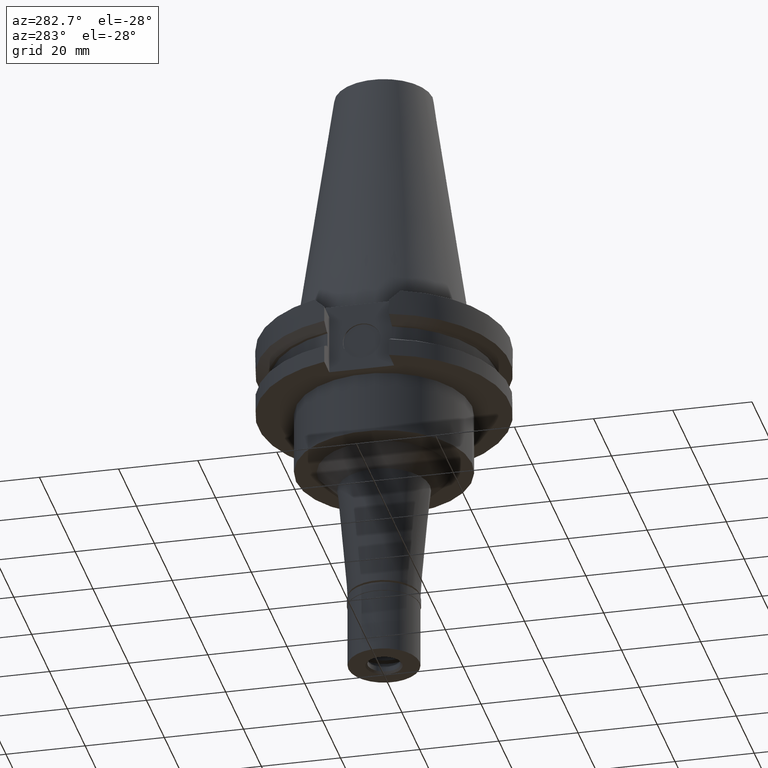
[diagram: clean part render]
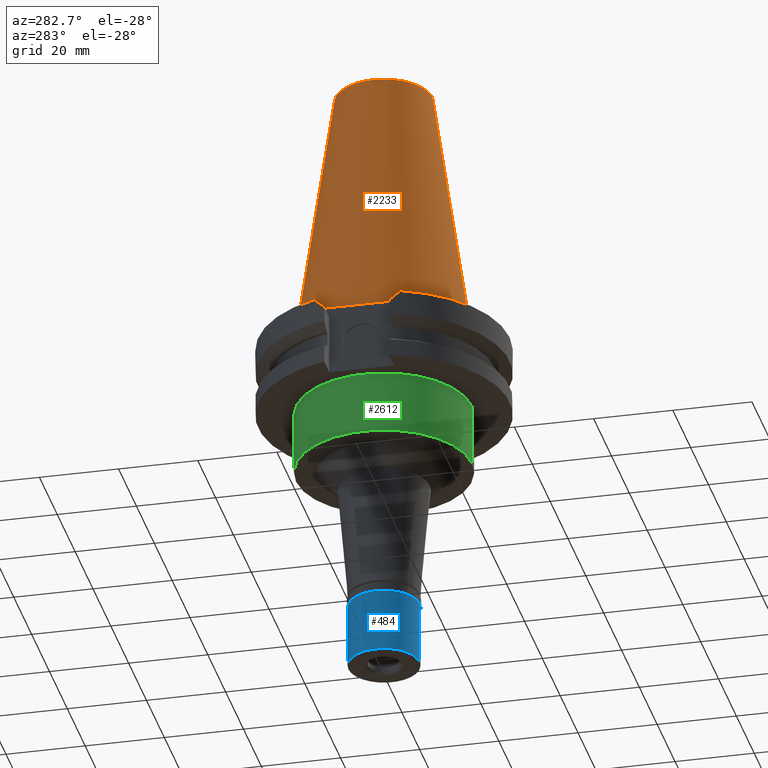
[diagram: same view with three faces highlighted in distinct colors, each labeled with its STEP entity id]
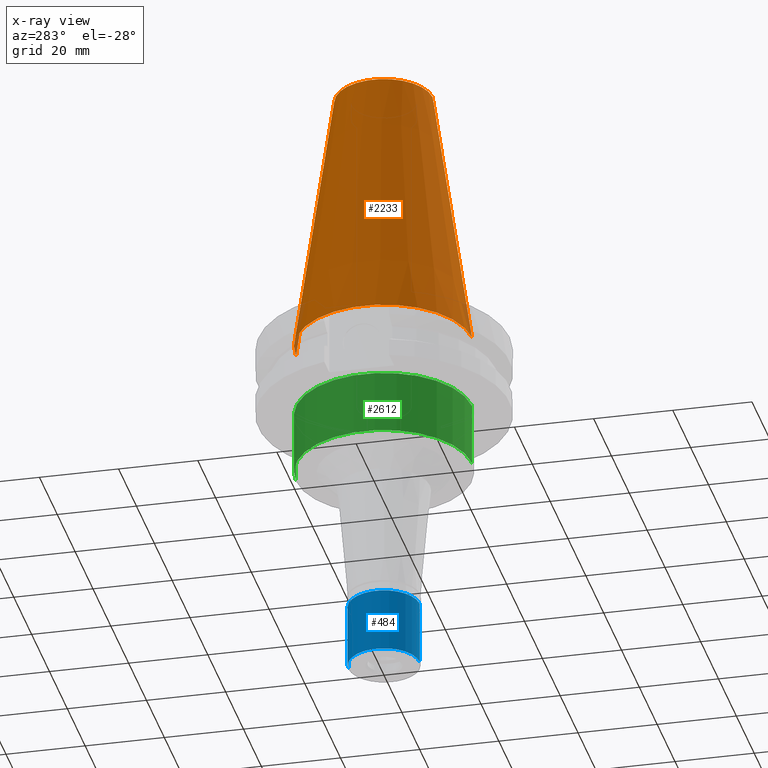
[diagram: x-ray of the same camera — body ghosted, the three highlighted faces saturated]
A machine part, auxiliary view with three faces highlighted in distinct colors.
The next image is the same camera in x-ray (body ghosted, the three faces saturated) — at least one of them is partly hidden behind the body in this view.
Their STEP definitions:

[orange] entity #2233 — the highlighted conical surface has half-angle 8.297 deg.
#37 = CARTESIAN_POINT ( 'NONE',  ( 0.0000000000000000000, -12.27186888070000137, 68.25000000000000000 ) ) ;
#69 = CONICAL_SURFACE ( 'NONE', #544, 17.24843444035000317, 0.1448125860318199565 ) ;
#82 = LINE ( 'NONE', #1310, #1571 ) ;
#205 = DIRECTION ( 'NONE',  ( 0.0000000000000000000, 0.0000000000000000000, -1.000000000000000000 ) ) ;
#287 = LINE ( 'NONE', #37, #1859 ) ;
#417 = FACE_OUTER_BOUND ( 'NONE', #930, .T. ) ;
#438 = CARTESIAN_POINT ( 'NONE',  ( 0.0000000000000000000, 1.642557519355999895E-14, 34.12500000000000000 ) ) ;
#475 = ORIENTED_EDGE ( 'NONE', *, *, #1887, .T. ) ;
#544 = AXIS2_PLACEMENT_3D ( 'NONE', #438, #205, #2926 ) ;
#560 = ORIENTED_EDGE ( 'NONE', *, *, #2562, .F. ) ;
#593 = DIRECTION ( 'NONE',  ( 0.0000000000000000000, 0.1443069799456937474, -0.9895329683941577192 ) ) ;
#789 = DIRECTION ( 'NONE',  ( 0.0000000000000000000, 0.0000000000000000000, -1.000000000000000000 ) ) ;
#930 = EDGE_LOOP ( 'NONE', ( #560, #2316, #475, #2873 ) ) ;
#1028 = CARTESIAN_POINT ( 'NONE',  ( 0.0000000000000000000, 12.27186888070000137, 68.25000000000000000 ) ) ;
#1060 = CIRCLE ( 'NONE', #2855, 22.22500000000000142 ) ;
#1264 = DIRECTION ( 'NONE',  ( 0.0000000000000000000, -1.000000000000000000, 0.0000000000000000000 ) ) ;
#1310 = CARTESIAN_POINT ( 'NONE',  ( 0.0000000000000000000, 12.27186888070000137, 68.25000000000000000 ) ) ;
#1348 = AXIS2_PLACEMENT_3D ( 'NONE', #1561, #789, #1264 ) ;
#1423 = DIRECTION ( 'NONE',  ( 0.0000000000000000000, -1.000000000000000000, 0.0000000000000000000 ) ) ;
#1561 = CARTESIAN_POINT ( 'NONE',  ( 0.0000000000000000000, 1.642557519355999895E-14, 68.25000000000000000 ) ) ;
#1571 = VECTOR ( 'NONE', #593, 1000.000000000000114 ) ;
#1649 = CARTESIAN_POINT ( 'NONE',  ( 0.0000000000000000000, 22.22500000000000142, -1.918465386551999891E-13 ) ) ;
#1681 = VERTEX_POINT ( 'NONE', #2398 ) ;
#1786 = DIRECTION ( 'NONE',  ( 0.0000000000000000000, -0.1443069799456937474, -0.9895329683941577192 ) ) ;
#1847 = CARTESIAN_POINT ( 'NONE',  ( 0.0000000000000000000, -22.22500000000000142, -1.918465386551999891E-13 ) ) ;
#1859 = VECTOR ( 'NONE', #1786, 1000.000000000000114 ) ;
#1887 = EDGE_CURVE ( 'NONE', #1681, #2447, #2995, .T. ) ;
#1997 = EDGE_CURVE ( 'NONE', #1681, #3139, #287, .T. ) ;
#2050 = CARTESIAN_POINT ( 'NONE',  ( 0.0000000000000000000, 1.642557519355999895E-14, -3.126388037344000570E-13 ) ) ;
#2233 = ADVANCED_FACE ( 'NONE', ( #417 ), #69, .T. ) ;
#2316 = ORIENTED_EDGE ( 'NONE', *, *, #1997, .F. ) ;
#2398 = CARTESIAN_POINT ( 'NONE',  ( 0.0000000000000000000, -12.27186888070000137, 68.25000000000000000 ) ) ;
#2447 = VERTEX_POINT ( 'NONE', #1028 ) ;
#2518 = EDGE_CURVE ( 'NONE', #2447, #2637, #82, .T. ) ;
#2562 = EDGE_CURVE ( 'NONE', #3139, #2637, #1060, .T. ) ;
#2637 = VERTEX_POINT ( 'NONE', #1649 ) ;
#2784 = DIRECTION ( 'NONE',  ( 0.0000000000000000000, 0.0000000000000000000, -1.000000000000000000 ) ) ;
#2855 = AXIS2_PLACEMENT_3D ( 'NONE', #2050, #2784, #1423 ) ;
#2873 = ORIENTED_EDGE ( 'NONE', *, *, #2518, .T. ) ;
#2926 = DIRECTION ( 'NONE',  ( 0.0000000000000000000, -1.000000000000000000, 0.0000000000000000000 ) ) ;
#2995 = CIRCLE ( 'NONE', #1348, 12.27186888070000137 ) ;
#3139 = VERTEX_POINT ( 'NONE', #1847 ) ;

[blue] entity #484 — the highlighted cylindrical surface (edge-blend (fillet) strip) has radius 9 mm, axis along (0, 0, 1).
#116 = DIRECTION ( 'NONE',  ( 0.0000000000000000000, 0.0000000000000000000, -1.000000000000000000 ) ) ;
#133 = CARTESIAN_POINT ( 'NONE',  ( 0.0000000000000000000, 0.0000000000000000000, -2.299999999999999822 ) ) ;
#165 = CARTESIAN_POINT ( 'NONE',  ( 0.0000000000000000000, 9.000000000000000000, -18.50000000000000000 ) ) ;
#252 = AXIS2_PLACEMENT_3D ( 'NONE', #1037, #3004, #2796 ) ;
#274 = CARTESIAN_POINT ( 'NONE',  ( 0.0000000000000000000, 9.000000000000000000, -2.299999999999999822 ) ) ;
#356 = CARTESIAN_POINT ( 'NONE',  ( 0.0000000000000000000, -9.000000000000000000, -2.299999999999999822 ) ) ;
#459 = CARTESIAN_POINT ( 'NONE',  ( 0.0000000000000000000, 0.0000000000000000000, -18.50000000000000000 ) ) ;
#471 = ORIENTED_EDGE ( 'NONE', *, *, #2333, .F. ) ;
#484 = ADVANCED_FACE ( 'NONE', ( #1271 ), #1548, .T. ) ;
#542 = ORIENTED_EDGE ( 'NONE', *, *, #1480, .T. ) ;
#570 = AXIS2_PLACEMENT_3D ( 'NONE', #459, #1438, #2433 ) ;
#742 = EDGE_LOOP ( 'NONE', ( #1591, #471, #1474, #542 ) ) ;
#756 = DIRECTION ( 'NONE',  ( 0.0000000000000000000, 0.0000000000000000000, -1.000000000000000000 ) ) ;
#787 = LINE ( 'NONE', #2033, #1921 ) ;
#922 = CIRCLE ( 'NONE', #1332, 9.000000000000000000 ) ;
#1019 = DIRECTION ( 'NONE',  ( 0.0000000000000000000, 0.0000000000000000000, -1.000000000000000000 ) ) ;
#1037 = CARTESIAN_POINT ( 'NONE',  ( 0.0000000000000000000, 0.0000000000000000000, -19.42500000000000071 ) ) ;
#1106 = EDGE_CURVE ( 'NONE', #2645, #2300, #922, .T. ) ;
#1271 = FACE_OUTER_BOUND ( 'NONE', #742, .T. ) ;
#1311 = EDGE_CURVE ( 'NONE', #2670, #2002, #3097, .T. ) ;
#1332 = AXIS2_PLACEMENT_3D ( 'NONE', #133, #116, #1631 ) ;
#1393 = VECTOR ( 'NONE', #1019, 1000.000000000000000 ) ;
#1438 = DIRECTION ( 'NONE',  ( 0.0000000000000000000, 0.0000000000000000000, 1.000000000000000000 ) ) ;
#1474 = ORIENTED_EDGE ( 'NONE', *, *, #1106, .T. ) ;
#1480 = EDGE_CURVE ( 'NONE', #2300, #2670, #3001, .T. ) ;
#1548 = CYLINDRICAL_SURFACE ( 'NONE', #252, 9.000000000000000000 ) ;
#1591 = ORIENTED_EDGE ( 'NONE', *, *, #1311, .T. ) ;
#1631 = DIRECTION ( 'NONE',  ( 0.0000000000000000000, -1.000000000000000000, 0.0000000000000000000 ) ) ;
#1921 = VECTOR ( 'NONE', #756, 1000.000000000000000 ) ;
#2002 = VERTEX_POINT ( 'NONE', #2515 ) ;
#2033 = CARTESIAN_POINT ( 'NONE',  ( 0.0000000000000000000, -9.000000000000000000, -2.299999999999999822 ) ) ;
#2300 = VERTEX_POINT ( 'NONE', #2678 ) ;
#2333 = EDGE_CURVE ( 'NONE', #2645, #2002, #787, .T. ) ;
#2433 = DIRECTION ( 'NONE',  ( 0.0000000000000000000, 1.000000000000000000, 0.0000000000000000000 ) ) ;
#2515 = CARTESIAN_POINT ( 'NONE',  ( 0.0000000000000000000, -9.000000000000000000, -18.50000000000000000 ) ) ;
#2645 = VERTEX_POINT ( 'NONE', #356 ) ;
#2670 = VERTEX_POINT ( 'NONE', #165 ) ;
#2678 = CARTESIAN_POINT ( 'NONE',  ( 0.0000000000000000000, 9.000000000000000000, -2.299999999999999822 ) ) ;
#2796 = DIRECTION ( 'NONE',  ( 0.0000000000000000000, 1.000000000000000000, 0.0000000000000000000 ) ) ;
#3001 = LINE ( 'NONE', #274, #1393 ) ;
#3004 = DIRECTION ( 'NONE',  ( 0.0000000000000000000, 0.0000000000000000000, 1.000000000000000000 ) ) ;
#3097 = CIRCLE ( 'NONE', #570, 9.000000000000000000 ) ;

[green] entity #2612 — the highlighted cylindrical surface (partial cylindrical patch) has radius 22.225 mm, axis along (0, 0, -1).
#18 = VECTOR ( 'NONE', #1632, 1000.000000000000000 ) ;
#187 = VERTEX_POINT ( 'NONE', #2935 ) ;
#652 = CARTESIAN_POINT ( 'NONE',  ( 0.0000000000000000000, -22.22500000000000142, -19.05000000000000071 ) ) ;
#774 = VERTEX_POINT ( 'NONE', #3095 ) ;
#872 = AXIS2_PLACEMENT_3D ( 'NONE', #1641, #1367, #1098 ) ;
#896 = CARTESIAN_POINT ( 'NONE',  ( 0.0000000000000000000, 22.22500000000000142, -19.05000000000000071 ) ) ;
#906 = ORIENTED_EDGE ( 'NONE', *, *, #2829, .T. ) ;
#916 = FACE_OUTER_BOUND ( 'NONE', #2121, .T. ) ;
#1030 = CARTESIAN_POINT ( 'NONE',  ( 0.0000000000000000000, 2.153878174169999899E-14, -35.00000000000000000 ) ) ;
#1075 = CYLINDRICAL_SURFACE ( 'NONE', #2905, 22.22500000000000142 ) ;
#1098 = DIRECTION ( 'NONE',  ( 0.0000000000000000000, -1.000000000000000000, 0.0000000000000000000 ) ) ;
#1157 = ORIENTED_EDGE ( 'NONE', *, *, #1998, .T. ) ;
#1367 = DIRECTION ( 'NONE',  ( 0.0000000000000000000, 0.0000000000000000000, -1.000000000000000000 ) ) ;
#1491 = LINE ( 'NONE', #2241, #3070 ) ;
#1519 = EDGE_CURVE ( 'NONE', #2934, #1530, #2892, .T. ) ;
#1530 = VERTEX_POINT ( 'NONE', #896 ) ;
#1547 = CARTESIAN_POINT ( 'NONE',  ( 0.0000000000000000000, -22.22500000000000142, -19.05000000000000071 ) ) ;
#1632 = DIRECTION ( 'NONE',  ( 0.0000000000000000000, 0.0000000000000000000, -1.000000000000000000 ) ) ;
#1641 = CARTESIAN_POINT ( 'NONE',  ( 0.0000000000000000000, 2.153878174169999899E-14, -19.05000000000000071 ) ) ;
#1660 = CIRCLE ( 'NONE', #2999, 22.22500000000000142 ) ;
#1794 = DIRECTION ( 'NONE',  ( 0.0000000000000000000, 0.0000000000000000000, -1.000000000000000000 ) ) ;
#1812 = DIRECTION ( 'NONE',  ( 0.0000000000000000000, -1.000000000000000000, 0.0000000000000000000 ) ) ;
#1998 = EDGE_CURVE ( 'NONE', #774, #187, #1660, .T. ) ;
#2001 = DIRECTION ( 'NONE',  ( 0.0000000000000000000, 0.0000000000000000000, 1.000000000000000000 ) ) ;
#2121 = EDGE_LOOP ( 'NONE', ( #1157, #2880, #3131, #906 ) ) ;
#2241 = CARTESIAN_POINT ( 'NONE',  ( 0.0000000000000000000, 22.22500000000000142, -19.05000000000000071 ) ) ;
#2612 = ADVANCED_FACE ( 'NONE', ( #916 ), #1075, .T. ) ;
#2666 = EDGE_CURVE ( 'NONE', #2934, #187, #3063, .T. ) ;
#2674 = DIRECTION ( 'NONE',  ( 0.0000000000000000000, 0.0000000000000000000, -1.000000000000000000 ) ) ;
#2776 = DIRECTION ( 'NONE',  ( 0.0000000000000000000, 1.000000000000000000, 0.0000000000000000000 ) ) ;
#2829 = EDGE_CURVE ( 'NONE', #1530, #774, #1491, .T. ) ;
#2880 = ORIENTED_EDGE ( 'NONE', *, *, #2666, .F. ) ;
#2892 = CIRCLE ( 'NONE', #872, 22.22500000000000142 ) ;
#2905 = AXIS2_PLACEMENT_3D ( 'NONE', #3025, #1794, #1812 ) ;
#2934 = VERTEX_POINT ( 'NONE', #1547 ) ;
#2935 = CARTESIAN_POINT ( 'NONE',  ( 0.0000000000000000000, -22.22500000000000142, -35.00000000000000000 ) ) ;
#2999 = AXIS2_PLACEMENT_3D ( 'NONE', #1030, #2001, #2776 ) ;
#3025 = CARTESIAN_POINT ( 'NONE',  ( 0.0000000000000000000, 2.153878174169999899E-14, 75.87749999999999773 ) ) ;
#3063 = LINE ( 'NONE', #652, #18 ) ;
#3070 = VECTOR ( 'NONE', #2674, 1000.000000000000000 ) ;
#3095 = CARTESIAN_POINT ( 'NONE',  ( 0.0000000000000000000, 22.22500000000000142, -35.00000000000000000 ) ) ;
#3131 = ORIENTED_EDGE ( 'NONE', *, *, #1519, .T. ) ;